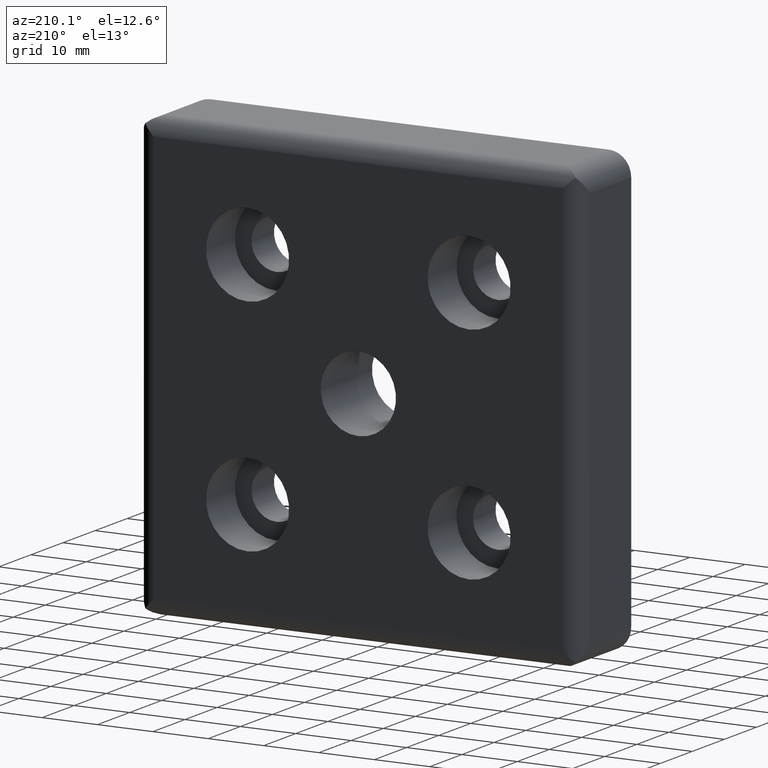
[diagram: clean part render]
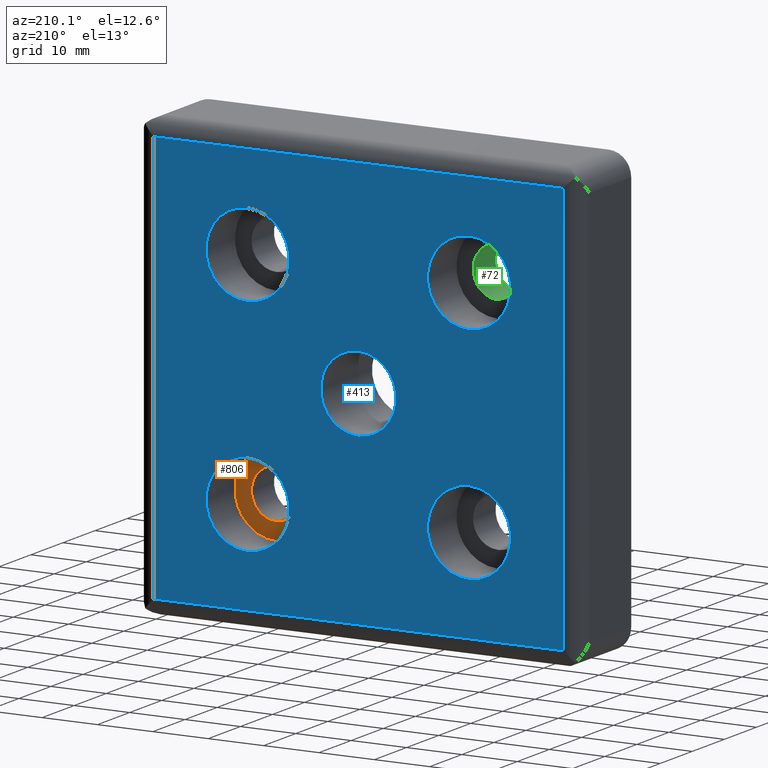
[diagram: same view with three faces highlighted in distinct colors, each labeled with its STEP entity id]
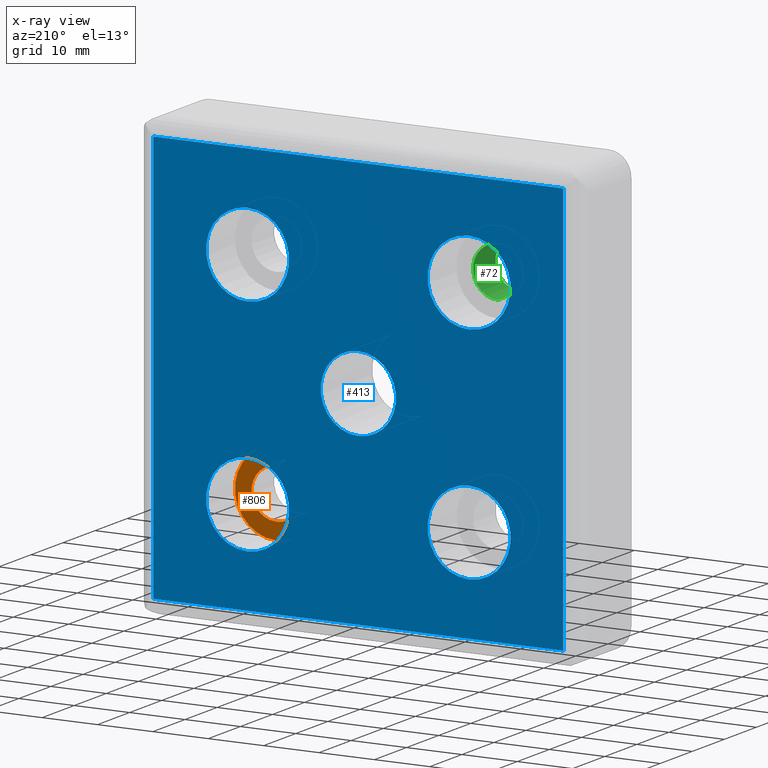
[diagram: x-ray of the same camera — body ghosted, the three highlighted faces saturated]
A machine part, auxiliary view with three faces highlighted in distinct colors.
The next image is the same camera in x-ray (body ghosted, the three faces saturated) — at least one of them is partly hidden behind the body in this view.
Their STEP definitions:

[orange] entity #806 — the highlighted planar face has unit normal (0, -1, -0).
#47 = AXIS2_PLACEMENT_3D ( 'NONE', #48, #921, #137 ) ;
#48 = CARTESIAN_POINT ( 'NONE',  ( 20.00000000000000000, 6.999999999999990200, -20.00000000000000000 ) ) ;
#65 = ORIENTED_EDGE ( 'NONE', *, *, #864, .T. ) ;
#98 = CARTESIAN_POINT ( 'NONE',  ( 20.00000000000000000, 6.999999999999990200, -20.00000000000000000 ) ) ;
#137 = DIRECTION ( 'NONE',  ( 0.0000000000000000000, 0.0000000000000000000, 1.000000000000000000 ) ) ;
#143 = CIRCLE ( 'NONE', #47, 4.500000000000000900 ) ;
#186 = ORIENTED_EDGE ( 'NONE', *, *, #532, .F. ) ;
#216 = ORIENTED_EDGE ( 'NONE', *, *, #1135, .F. ) ;
#222 = DIRECTION ( 'NONE',  ( 0.0000000000000000000, 2.368475785867000100E-015, -1.000000000000000000 ) ) ;
#245 = CARTESIAN_POINT ( 'NONE',  ( 20.00000000000000000, 6.999999999999990200, -27.50000000000000000 ) ) ;
#285 = CIRCLE ( 'NONE', #1005, 7.500000000000000000 ) ;
#296 = VERTEX_POINT ( 'NONE', #245 ) ;
#320 = CARTESIAN_POINT ( 'NONE',  ( 20.00000000000000000, 6.999999999999990200, -24.50000000000000000 ) ) ;
#334 = PLANE ( 'NONE',  #447 ) ;
#370 = DIRECTION ( 'NONE',  ( 0.0000000000000000000, 0.0000000000000000000, 1.000000000000000000 ) ) ;
#447 = AXIS2_PLACEMENT_3D ( 'NONE', #1096, #785, #222 ) ;
#473 = CARTESIAN_POINT ( 'NONE',  ( 20.00000000000000000, 6.999999999999990200, -12.50000000000000000 ) ) ;
#494 = CARTESIAN_POINT ( 'NONE',  ( 20.00000000000000000, 6.999999999999990200, -15.50000000000000000 ) ) ;
#523 = FACE_BOUND ( 'NONE', #1178, .T. ) ;
#532 = EDGE_CURVE ( 'NONE', #296, #603, #944, .T. ) ;
#573 = DIRECTION ( 'NONE',  ( -0.0000000000000000000, -1.000000000000000000, -0.0000000000000000000 ) ) ;
#603 = VERTEX_POINT ( 'NONE', #473 ) ;
#628 = CARTESIAN_POINT ( 'NONE',  ( 20.00000000000000000, 6.999999999999990200, -20.00000000000000000 ) ) ;
#671 = DIRECTION ( 'NONE',  ( 0.0000000000000000000, 0.0000000000000000000, 1.000000000000000000 ) ) ;
#711 = DIRECTION ( 'NONE',  ( 0.0000000000000000000, 0.0000000000000000000, 1.000000000000000000 ) ) ;
#729 = VERTEX_POINT ( 'NONE', #494 ) ;
#771 = VERTEX_POINT ( 'NONE', #320 ) ;
#785 = DIRECTION ( 'NONE',  ( 0.0000000000000000000, -1.000000000000000000, -2.368475785867000100E-015 ) ) ;
#787 = EDGE_LOOP ( 'NONE', ( #216, #186 ) ) ;
#799 = FACE_OUTER_BOUND ( 'NONE', #787, .T. ) ;
#806 = ADVANCED_FACE ( 'NONE', ( #799, #523 ), #334, .F. ) ;
#842 = CARTESIAN_POINT ( 'NONE',  ( 20.00000000000000000, 6.999999999999990200, -20.00000000000000000 ) ) ;
#864 = EDGE_CURVE ( 'NONE', #729, #771, #902, .T. ) ;
#902 = CIRCLE ( 'NONE', #919, 4.500000000000000900 ) ;
#919 = AXIS2_PLACEMENT_3D ( 'NONE', #628, #1020, #711 ) ;
#921 = DIRECTION ( 'NONE',  ( -0.0000000000000000000, -1.000000000000000000, -0.0000000000000000000 ) ) ;
#925 = EDGE_CURVE ( 'NONE', #771, #729, #143, .T. ) ;
#944 = CIRCLE ( 'NONE', #1110, 7.500000000000000000 ) ;
#1005 = AXIS2_PLACEMENT_3D ( 'NONE', #98, #1265, #671 ) ;
#1020 = DIRECTION ( 'NONE',  ( -0.0000000000000000000, -1.000000000000000000, -0.0000000000000000000 ) ) ;
#1096 = CARTESIAN_POINT ( 'NONE',  ( 20.00000000000000000, 6.999999999999990200, -14.00000000000000000 ) ) ;
#1110 = AXIS2_PLACEMENT_3D ( 'NONE', #842, #573, #370 ) ;
#1135 = EDGE_CURVE ( 'NONE', #603, #296, #285, .T. ) ;
#1178 = EDGE_LOOP ( 'NONE', ( #65, #1182 ) ) ;
#1182 = ORIENTED_EDGE ( 'NONE', *, *, #925, .T. ) ;
#1265 = DIRECTION ( 'NONE',  ( -0.0000000000000000000, -1.000000000000000000, -0.0000000000000000000 ) ) ;

[blue] entity #413 — the highlighted planar face has unit normal (0, 1, 0).
#6 = AXIS2_PLACEMENT_3D ( 'NONE', #973, #1176, #586 ) ;
#17 = DIRECTION ( 'NONE',  ( 0.0000000000000000000, 0.0000000000000000000, 1.000000000000000000 ) ) ;
#22 = CARTESIAN_POINT ( 'NONE',  ( 40.00000000000000000, 15.99999999999998900, 37.00000000000000000 ) ) ;
#27 = EDGE_CURVE ( 'NONE', #755, #1195, #832, .T. ) ;
#30 = LINE ( 'NONE', #353, #1111 ) ;
#41 = EDGE_CURVE ( 'NONE', #810, #127, #1216, .T. ) ;
#49 = FACE_BOUND ( 'NONE', #492, .T. ) ;
#53 = DIRECTION ( 'NONE',  ( -0.0000000000000000000, -1.000000000000000000, -0.0000000000000000000 ) ) ;
#73 = CARTESIAN_POINT ( 'NONE',  ( 20.00000000000000000, 16.00000000000000000, -12.50000000000000000 ) ) ;
#127 = VERTEX_POINT ( 'NONE', #794 ) ;
#132 = DIRECTION ( 'NONE',  ( 0.0000000000000000000, 0.0000000000000000000, 1.000000000000000000 ) ) ;
#159 = CIRCLE ( 'NONE', #796, 7.500000000000000000 ) ;
#163 = EDGE_CURVE ( 'NONE', #497, #894, #244, .T. ) ;
#166 = CARTESIAN_POINT ( 'NONE',  ( 20.00000000000000000, 16.00000000000000000, 20.00000000000000000 ) ) ;
#168 = VERTEX_POINT ( 'NONE', #319 ) ;
#175 = EDGE_CURVE ( 'NONE', #894, #878, #994, .T. ) ;
#208 = CARTESIAN_POINT ( 'NONE',  ( -37.00000000000000000, 15.99999999999999300, -37.00000000000000000 ) ) ;
#210 = VECTOR ( 'NONE', #646, 1000.000000000000000 ) ;
#221 = DIRECTION ( 'NONE',  ( 0.0000000000000000000, 0.0000000000000000000, 1.000000000000000000 ) ) ;
#231 = DIRECTION ( 'NONE',  ( 0.0000000000000000000, 0.0000000000000000000, 1.000000000000000000 ) ) ;
#240 = EDGE_CURVE ( 'NONE', #901, #385, #946, .T. ) ;
#242 = CARTESIAN_POINT ( 'NONE',  ( 37.00000000000000000, 15.99999999999999300, 37.00000000000000000 ) ) ;
#244 = LINE ( 'NONE', #696, #772 ) ;
#249 = CARTESIAN_POINT ( 'NONE',  ( 0.0000000000000000000, 16.00000000000000000, 0.0000000000000000000 ) ) ;
#255 = ORIENTED_EDGE ( 'NONE', *, *, #813, .T. ) ;
#275 = CIRCLE ( 'NONE', #1175, 6.799999999999999800 ) ;
#279 = EDGE_LOOP ( 'NONE', ( #255, #311 ) ) ;
#295 = EDGE_LOOP ( 'NONE', ( #1131, #1161 ) ) ;
#298 = AXIS2_PLACEMENT_3D ( 'NONE', #702, #871, #231 ) ;
#311 = ORIENTED_EDGE ( 'NONE', *, *, #27, .T. ) ;
#316 = FACE_BOUND ( 'NONE', #530, .T. ) ;
#319 = CARTESIAN_POINT ( 'NONE',  ( -20.00000000000000000, 16.00000000000000000, 12.50000000000000000 ) ) ;
#321 = DIRECTION ( 'NONE',  ( 0.0000000000000000000, 0.0000000000000000000, 1.000000000000000000 ) ) ;
#323 = CARTESIAN_POINT ( 'NONE',  ( -20.00000000000000000, 16.00000000000000000, -27.50000000000000000 ) ) ;
#353 = CARTESIAN_POINT ( 'NONE',  ( -37.00000000000000000, 15.99999999999998900, 40.00000000000000000 ) ) ;
#364 = CIRCLE ( 'NONE', #648, 7.500000000000000000 ) ;
#365 = AXIS2_PLACEMENT_3D ( 'NONE', #938, #642, #737 ) ;
#383 = AXIS2_PLACEMENT_3D ( 'NONE', #1103, #1194, #17 ) ;
#385 = VERTEX_POINT ( 'NONE', #718 ) ;
#390 = AXIS2_PLACEMENT_3D ( 'NONE', #166, #837, #858 ) ;
#409 = FACE_BOUND ( 'NONE', #295, .T. ) ;
#413 = ADVANCED_FACE ( 'NONE', ( #915, #816, #409, #570, #316, #49 ), #809, .T. ) ;
#414 = EDGE_CURVE ( 'NONE', #539, #1026, #698, .T. ) ;
#424 = CARTESIAN_POINT ( 'NONE',  ( 20.00000000000000000, 16.00000000000000000, 12.50000000000000000 ) ) ;
#443 = DIRECTION ( 'NONE',  ( 0.0000000000000000000, 1.000000000000000000, 0.0000000000000000000 ) ) ;
#465 = LINE ( 'NONE', #1041, #210 ) ;
#481 = EDGE_CURVE ( 'NONE', #878, #1238, #30, .T. ) ;
#487 = CARTESIAN_POINT ( 'NONE',  ( 20.00000000000000000, 16.00000000000000000, 27.50000000000000000 ) ) ;
#492 = EDGE_LOOP ( 'NONE', ( #958, #1190 ) ) ;
#497 = VERTEX_POINT ( 'NONE', #1237 ) ;
#504 = EDGE_CURVE ( 'NONE', #1238, #497, #465, .T. ) ;
#516 = AXIS2_PLACEMENT_3D ( 'NONE', #249, #443, #814 ) ;
#526 = VECTOR ( 'NONE', #1177, 1000.000000000000000 ) ;
#530 = EDGE_LOOP ( 'NONE', ( #1165, #979 ) ) ;
#533 = EDGE_LOOP ( 'NONE', ( #937, #556, #766, #1268 ) ) ;
#535 = DIRECTION ( 'NONE',  ( 0.0000000000000000000, 0.0000000000000000000, 1.000000000000000000 ) ) ;
#539 = VERTEX_POINT ( 'NONE', #926 ) ;
#556 = ORIENTED_EDGE ( 'NONE', *, *, #175, .F. ) ;
#570 = FACE_BOUND ( 'NONE', #706, .T. ) ;
#580 = AXIS2_PLACEMENT_3D ( 'NONE', #662, #962, #1239 ) ;
#581 = DIRECTION ( 'NONE',  ( -0.0000000000000000000, -1.000000000000000000, -0.0000000000000000000 ) ) ;
#586 = DIRECTION ( 'NONE',  ( 0.0000000000000000000, 0.0000000000000000000, 1.000000000000000000 ) ) ;
#596 = DIRECTION ( 'NONE',  ( -0.0000000000000000000, -1.000000000000000000, -0.0000000000000000000 ) ) ;
#601 = CIRCLE ( 'NONE', #1266, 7.500000000000000000 ) ;
#624 = CARTESIAN_POINT ( 'NONE',  ( -20.00000000000000000, 16.00000000000000000, -20.00000000000000000 ) ) ;
#636 = CARTESIAN_POINT ( 'NONE',  ( 8.327598234202001100E-016, 16.00000000000000000, -6.799999999999999800 ) ) ;
#642 = DIRECTION ( 'NONE',  ( -0.0000000000000000000, -1.000000000000000000, -0.0000000000000000000 ) ) ;
#646 = DIRECTION ( 'NONE',  ( 1.000000000000000000, 0.0000000000000000000, 0.0000000000000000000 ) ) ;
#648 = AXIS2_PLACEMENT_3D ( 'NONE', #624, #1128, #132 ) ;
#649 = EDGE_CURVE ( 'NONE', #385, #901, #275, .T. ) ;
#662 = CARTESIAN_POINT ( 'NONE',  ( -20.00000000000000000, 16.00000000000000000, -20.00000000000000000 ) ) ;
#696 = CARTESIAN_POINT ( 'NONE',  ( 37.00000000000000000, 16.00000000000000000, 40.00000000000000000 ) ) ;
#698 = CIRCLE ( 'NONE', #365, 7.500000000000000000 ) ;
#702 = CARTESIAN_POINT ( 'NONE',  ( 0.0000000000000000000, 16.00000000000000000, 0.0000000000000000000 ) ) ;
#706 = EDGE_LOOP ( 'NONE', ( #746, #825 ) ) ;
#718 = CARTESIAN_POINT ( 'NONE',  ( 0.0000000000000000000, 16.00000000000000000, 6.799999999999999800 ) ) ;
#730 = EDGE_CURVE ( 'NONE', #1026, #539, #899, .T. ) ;
#737 = DIRECTION ( 'NONE',  ( 0.0000000000000000000, 0.0000000000000000000, 1.000000000000000000 ) ) ;
#746 = ORIENTED_EDGE ( 'NONE', *, *, #904, .T. ) ;
#755 = VERTEX_POINT ( 'NONE', #424 ) ;
#766 = ORIENTED_EDGE ( 'NONE', *, *, #163, .F. ) ;
#772 = VECTOR ( 'NONE', #321, 1000.000000000000000 ) ;
#793 = CARTESIAN_POINT ( 'NONE',  ( -37.00000000000000000, 15.99999999999998900, 37.00000000000000000 ) ) ;
#794 = CARTESIAN_POINT ( 'NONE',  ( -20.00000000000000000, 16.00000000000000000, -12.50000000000000000 ) ) ;
#796 = AXIS2_PLACEMENT_3D ( 'NONE', #1215, #53, #535 ) ;
#797 = VERTEX_POINT ( 'NONE', #903 ) ;
#809 = PLANE ( 'NONE',  #516 ) ;
#810 = VERTEX_POINT ( 'NONE', #323 ) ;
#813 = EDGE_CURVE ( 'NONE', #1195, #755, #1170, .T. ) ;
#814 = DIRECTION ( 'NONE',  ( 0.0000000000000000000, -0.0000000000000000000, 1.000000000000000000 ) ) ;
#816 = FACE_BOUND ( 'NONE', #279, .T. ) ;
#825 = ORIENTED_EDGE ( 'NONE', *, *, #1206, .T. ) ;
#832 = CIRCLE ( 'NONE', #390, 7.500000000000000000 ) ;
#837 = DIRECTION ( 'NONE',  ( -0.0000000000000000000, -1.000000000000000000, -0.0000000000000000000 ) ) ;
#858 = DIRECTION ( 'NONE',  ( 0.0000000000000000000, 0.0000000000000000000, 1.000000000000000000 ) ) ;
#868 = CARTESIAN_POINT ( 'NONE',  ( 0.0000000000000000000, 16.00000000000000000, 0.0000000000000000000 ) ) ;
#871 = DIRECTION ( 'NONE',  ( -0.0000000000000000000, -1.000000000000000000, -0.0000000000000000000 ) ) ;
#878 = VERTEX_POINT ( 'NONE', #793 ) ;
#879 = CARTESIAN_POINT ( 'NONE',  ( -20.00000000000000000, 16.00000000000000000, 20.00000000000000000 ) ) ;
#880 = EDGE_CURVE ( 'NONE', #127, #810, #364, .T. ) ;
#894 = VERTEX_POINT ( 'NONE', #242 ) ;
#899 = CIRCLE ( 'NONE', #6, 7.500000000000000000 ) ;
#901 = VERTEX_POINT ( 'NONE', #636 ) ;
#903 = CARTESIAN_POINT ( 'NONE',  ( -20.00000000000000000, 16.00000000000000000, 27.50000000000000000 ) ) ;
#904 = EDGE_CURVE ( 'NONE', #797, #168, #159, .T. ) ;
#915 = FACE_OUTER_BOUND ( 'NONE', #533, .T. ) ;
#926 = CARTESIAN_POINT ( 'NONE',  ( 20.00000000000000000, 16.00000000000000000, -27.50000000000000000 ) ) ;
#937 = ORIENTED_EDGE ( 'NONE', *, *, #481, .F. ) ;
#938 = CARTESIAN_POINT ( 'NONE',  ( 20.00000000000000000, 16.00000000000000000, -20.00000000000000000 ) ) ;
#946 = CIRCLE ( 'NONE', #298, 6.799999999999999800 ) ;
#958 = ORIENTED_EDGE ( 'NONE', *, *, #649, .T. ) ;
#962 = DIRECTION ( 'NONE',  ( -0.0000000000000000000, -1.000000000000000000, -0.0000000000000000000 ) ) ;
#973 = CARTESIAN_POINT ( 'NONE',  ( 20.00000000000000000, 16.00000000000000000, -20.00000000000000000 ) ) ;
#979 = ORIENTED_EDGE ( 'NONE', *, *, #41, .T. ) ;
#994 = LINE ( 'NONE', #22, #526 ) ;
#1026 = VERTEX_POINT ( 'NONE', #73 ) ;
#1041 = CARTESIAN_POINT ( 'NONE',  ( 40.00000000000000000, 16.00000000000000000, -37.00000000000000000 ) ) ;
#1103 = CARTESIAN_POINT ( 'NONE',  ( 20.00000000000000000, 16.00000000000000000, 20.00000000000000000 ) ) ;
#1111 = VECTOR ( 'NONE', #1233, 1000.000000000000000 ) ;
#1128 = DIRECTION ( 'NONE',  ( -0.0000000000000000000, -1.000000000000000000, -0.0000000000000000000 ) ) ;
#1131 = ORIENTED_EDGE ( 'NONE', *, *, #730, .T. ) ;
#1161 = ORIENTED_EDGE ( 'NONE', *, *, #414, .T. ) ;
#1165 = ORIENTED_EDGE ( 'NONE', *, *, #880, .T. ) ;
#1170 = CIRCLE ( 'NONE', #383, 7.500000000000000000 ) ;
#1175 = AXIS2_PLACEMENT_3D ( 'NONE', #868, #581, #1183 ) ;
#1176 = DIRECTION ( 'NONE',  ( -0.0000000000000000000, -1.000000000000000000, -0.0000000000000000000 ) ) ;
#1177 = DIRECTION ( 'NONE',  ( -1.000000000000000000, -0.0000000000000000000, -0.0000000000000000000 ) ) ;
#1183 = DIRECTION ( 'NONE',  ( 0.0000000000000000000, 0.0000000000000000000, 1.000000000000000000 ) ) ;
#1190 = ORIENTED_EDGE ( 'NONE', *, *, #240, .T. ) ;
#1194 = DIRECTION ( 'NONE',  ( -0.0000000000000000000, -1.000000000000000000, -0.0000000000000000000 ) ) ;
#1195 = VERTEX_POINT ( 'NONE', #487 ) ;
#1206 = EDGE_CURVE ( 'NONE', #168, #797, #601, .T. ) ;
#1215 = CARTESIAN_POINT ( 'NONE',  ( -20.00000000000000000, 16.00000000000000000, 20.00000000000000000 ) ) ;
#1216 = CIRCLE ( 'NONE', #580, 7.500000000000000000 ) ;
#1233 = DIRECTION ( 'NONE',  ( -0.0000000000000000000, -0.0000000000000000000, -1.000000000000000000 ) ) ;
#1237 = CARTESIAN_POINT ( 'NONE',  ( 37.00000000000000000, 16.00000000000000000, -37.00000000000000000 ) ) ;
#1238 = VERTEX_POINT ( 'NONE', #208 ) ;
#1239 = DIRECTION ( 'NONE',  ( 0.0000000000000000000, 0.0000000000000000000, 1.000000000000000000 ) ) ;
#1266 = AXIS2_PLACEMENT_3D ( 'NONE', #879, #596, #221 ) ;
#1268 = ORIENTED_EDGE ( 'NONE', *, *, #504, .F. ) ;

[green] entity #72 — the highlighted cylindrical surface (edge-blend (fillet) strip) has radius 4.5 mm, axis along (0, 1, 0).
#25 = ORIENTED_EDGE ( 'NONE', *, *, #972, .F. ) ;
#72 = ADVANCED_FACE ( 'NONE', ( #1085 ), #482, .F. ) ;
#136 = EDGE_LOOP ( 'NONE', ( #1235, #224, #657, #25 ) ) ;
#148 = DIRECTION ( 'NONE',  ( -0.0000000000000000000, -1.000000000000000000, -0.0000000000000000000 ) ) ;
#224 = ORIENTED_EDGE ( 'NONE', *, *, #873, .T. ) ;
#247 = CARTESIAN_POINT ( 'NONE',  ( -20.00000000000000000, 0.0000000000000000000, 20.00000000000000000 ) ) ;
#256 = LINE ( 'NONE', #853, #847 ) ;
#300 = VECTOR ( 'NONE', #1068, 1000.000000000000000 ) ;
#435 = VERTEX_POINT ( 'NONE', #1218 ) ;
#482 = CYLINDRICAL_SURFACE ( 'NONE', #1257, 4.500000000000000900 ) ;
#540 = DIRECTION ( 'NONE',  ( 0.0000000000000000000, 0.0000000000000000000, 1.000000000000000000 ) ) ;
#558 = CARTESIAN_POINT ( 'NONE',  ( -20.00000000000000000, 3.500000000000000000, 15.50000000000000000 ) ) ;
#623 = EDGE_CURVE ( 'NONE', #795, #1044, #1047, .T. ) ;
#657 = ORIENTED_EDGE ( 'NONE', *, *, #1143, .T. ) ;
#731 = CIRCLE ( 'NONE', #1126, 4.500000000000000900 ) ;
#765 = DIRECTION ( 'NONE',  ( 0.0000000000000000000, 1.000000000000000000, 0.0000000000000000000 ) ) ;
#795 = VERTEX_POINT ( 'NONE', #1003 ) ;
#808 = CARTESIAN_POINT ( 'NONE',  ( -20.00000000000000000, 6.999999999999990200, 20.00000000000000000 ) ) ;
#822 = CARTESIAN_POINT ( 'NONE',  ( -20.00000000000000000, 6.999999999999990200, 24.50000000000000000 ) ) ;
#839 = DIRECTION ( 'NONE',  ( 0.0000000000000000000, 0.0000000000000000000, 1.000000000000000000 ) ) ;
#847 = VECTOR ( 'NONE', #765, 1000.000000000000000 ) ;
#850 = CARTESIAN_POINT ( 'NONE',  ( -20.00000000000000000, 3.500000000000000000, 20.00000000000000000 ) ) ;
#853 = CARTESIAN_POINT ( 'NONE',  ( -20.00000000000000000, 3.500000000000000000, 24.50000000000000000 ) ) ;
#856 = CIRCLE ( 'NONE', #870, 4.500000000000000900 ) ;
#870 = AXIS2_PLACEMENT_3D ( 'NONE', #808, #1122, #839 ) ;
#873 = EDGE_CURVE ( 'NONE', #795, #435, #731, .T. ) ;
#942 = DIRECTION ( 'NONE',  ( 0.0000000000000000000, 1.000000000000000000, 0.0000000000000000000 ) ) ;
#972 = EDGE_CURVE ( 'NONE', #1044, #989, #856, .T. ) ;
#989 = VERTEX_POINT ( 'NONE', #822 ) ;
#1003 = CARTESIAN_POINT ( 'NONE',  ( -20.00000000000000000, 0.0000000000000000000, 15.50000000000000000 ) ) ;
#1044 = VERTEX_POINT ( 'NONE', #1137 ) ;
#1047 = LINE ( 'NONE', #558, #300 ) ;
#1068 = DIRECTION ( 'NONE',  ( 0.0000000000000000000, 1.000000000000000000, 0.0000000000000000000 ) ) ;
#1085 = FACE_OUTER_BOUND ( 'NONE', #136, .T. ) ;
#1122 = DIRECTION ( 'NONE',  ( -0.0000000000000000000, -1.000000000000000000, -0.0000000000000000000 ) ) ;
#1126 = AXIS2_PLACEMENT_3D ( 'NONE', #247, #148, #540 ) ;
#1137 = CARTESIAN_POINT ( 'NONE',  ( -20.00000000000000000, 6.999999999999990200, 15.50000000000000000 ) ) ;
#1143 = EDGE_CURVE ( 'NONE', #435, #989, #256, .T. ) ;
#1218 = CARTESIAN_POINT ( 'NONE',  ( -20.00000000000000000, 0.0000000000000000000, 24.50000000000000000 ) ) ;
#1235 = ORIENTED_EDGE ( 'NONE', *, *, #623, .F. ) ;
#1247 = DIRECTION ( 'NONE',  ( 0.0000000000000000000, 0.0000000000000000000, 1.000000000000000000 ) ) ;
#1257 = AXIS2_PLACEMENT_3D ( 'NONE', #850, #942, #1247 ) ;